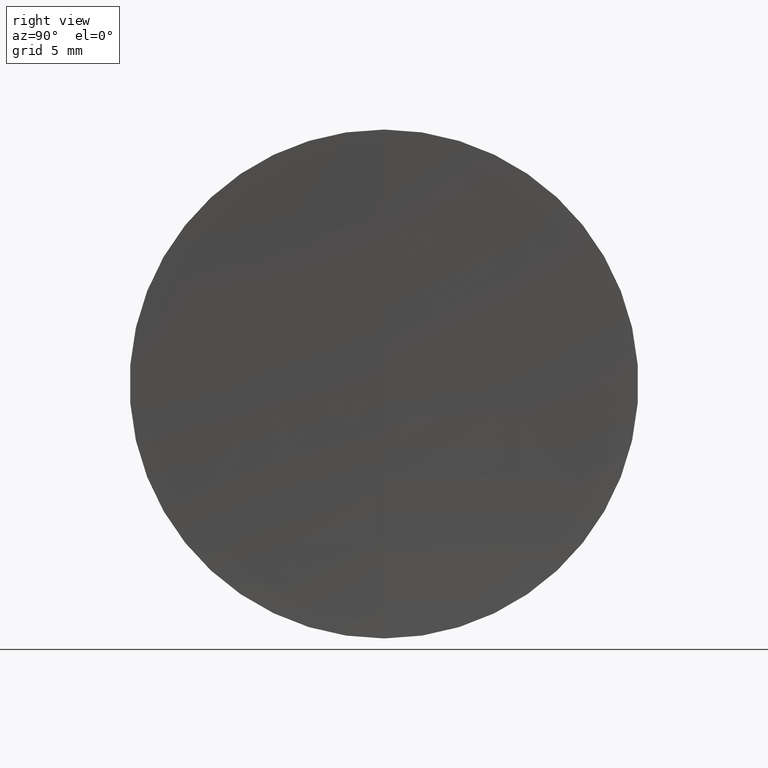
[diagram: clean part render]
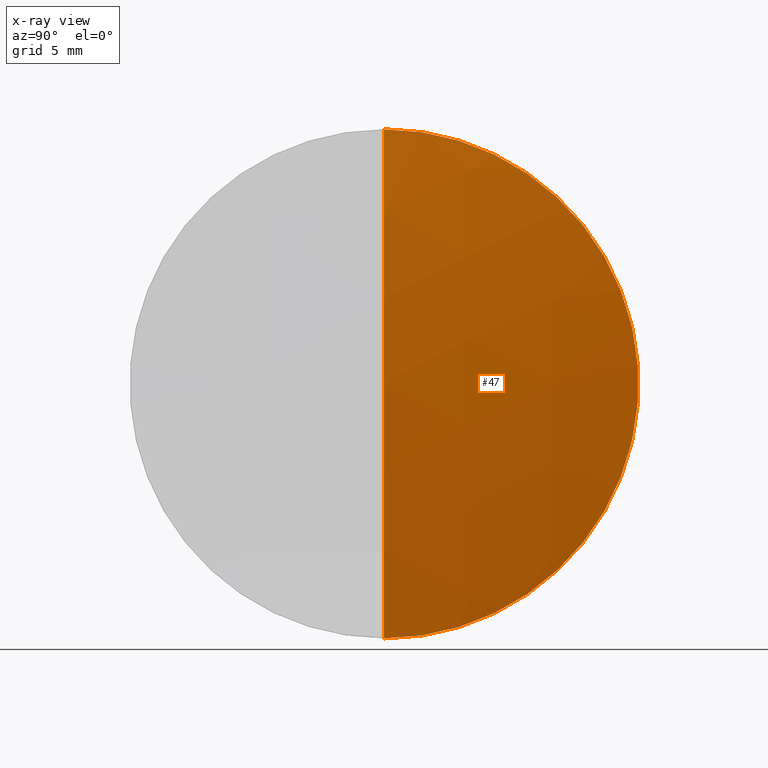
[diagram: x-ray — body ghosted, one internal face saturated and labeled with its STEP entity id]
A machine part, right view, then the same camera in x-ray: the body is ghosted and one INTERNAL B-rep face — a face not visible from any outside direction — is saturated and labeled: STEP entity #47.
In plain terms, the highlighted spherical surface has radius 87.6 mm.
Its self-contained STEP definition (entity closure, byte-faithful):
#2 = ORIENTED_EDGE ( 'NONE', *, *, #5, .T. ) ;
#5 = EDGE_CURVE ( 'NONE', #159, #330, #52, .T. ) ;
#10 = DIRECTION ( 'NONE',  ( -0.0000000000000000000, 1.000000000000000000, 1.224646799147353200E-016 ) ) ;
#35 = ORIENTED_EDGE ( 'NONE', *, *, #294, .F. ) ;
#47 = ADVANCED_FACE ( 'NONE', ( #68 ), #267, .T. ) ;
#52 = CIRCLE ( 'NONE', #84, 87.60000000000000900 ) ;
#68 = FACE_OUTER_BOUND ( 'NONE', #140, .T. ) ;
#84 = AXIS2_PLACEMENT_3D ( 'NONE', #284, #10, #278 ) ;
#98 = DIRECTION ( 'NONE',  ( 0.0000000000000000000, -1.000000000000000000, 0.0000000000000000000 ) ) ;
#109 = CARTESIAN_POINT ( 'NONE',  ( 297.7703518641218900, 1.555301434917138000E-015, -12.69999999999999400 ) ) ;
#140 = EDGE_LOOP ( 'NONE', ( #221, #2, #35 ) ) ;
#143 = AXIS2_PLACEMENT_3D ( 'NONE', #261, #98, #175 ) ;
#151 = DIRECTION ( 'NONE',  ( 0.0000000000000000000, 1.000000000000000000, 0.0000000000000000000 ) ) ;
#159 = VERTEX_POINT ( 'NONE', #208 ) ;
#172 = CARTESIAN_POINT ( 'NONE',  ( 211.0958458084194300, 0.0000000000000000000, -3.185954776904472300E-015 ) ) ;
#175 = DIRECTION ( 'NONE',  ( 0.0000000000000000000, 0.0000000000000000000, -1.000000000000000000 ) ) ;
#192 = VERTEX_POINT ( 'NONE', #302 ) ;
#208 = CARTESIAN_POINT ( 'NONE',  ( 298.6958458084194500, 0.0000000000000000000, 2.177998203360935400E-015 ) ) ;
#218 = AXIS2_PLACEMENT_3D ( 'NONE', #172, #151, #343 ) ;
#221 = ORIENTED_EDGE ( 'NONE', *, *, #223, .F. ) ;
#223 = EDGE_CURVE ( 'NONE', #159, #192, #271, .T. ) ;
#232 = CIRCLE ( 'NONE', #346, 12.69999999999999400 ) ;
#261 = CARTESIAN_POINT ( 'NONE',  ( 211.0958458084194300, 0.0000000000000000000, -3.185954776904472300E-015 ) ) ;
#262 = CARTESIAN_POINT ( 'NONE',  ( 297.7703518641218900, 0.0000000000000000000, 0.0000000000000000000 ) ) ;
#267 = SPHERICAL_SURFACE ( 'NONE', #218, 87.60000000000000900 ) ;
#271 = CIRCLE ( 'NONE', #143, 87.60000000000000900 ) ;
#278 = DIRECTION ( 'NONE',  ( 0.0000000000000000000, -1.224646799147353200E-016, 1.000000000000000000 ) ) ;
#284 = CARTESIAN_POINT ( 'NONE',  ( 211.0958458084194300, 0.0000000000000000000, -3.185954776904472300E-015 ) ) ;
#290 = DIRECTION ( 'NONE',  ( 0.0000000000000000000, 0.0000000000000000000, 1.000000000000000000 ) ) ;
#294 = EDGE_CURVE ( 'NONE', #192, #330, #232, .T. ) ;
#302 = CARTESIAN_POINT ( 'NONE',  ( 297.7703518641218900, 0.0000000000000000000, 12.69999999999999400 ) ) ;
#305 = DIRECTION ( 'NONE',  ( -1.000000000000000000, -0.0000000000000000000, -0.0000000000000000000 ) ) ;
#330 = VERTEX_POINT ( 'NONE', #109 ) ;
#343 = DIRECTION ( 'NONE',  ( 0.0000000000000000000, 0.0000000000000000000, 1.000000000000000000 ) ) ;
#346 = AXIS2_PLACEMENT_3D ( 'NONE', #262, #305, #290 ) ;